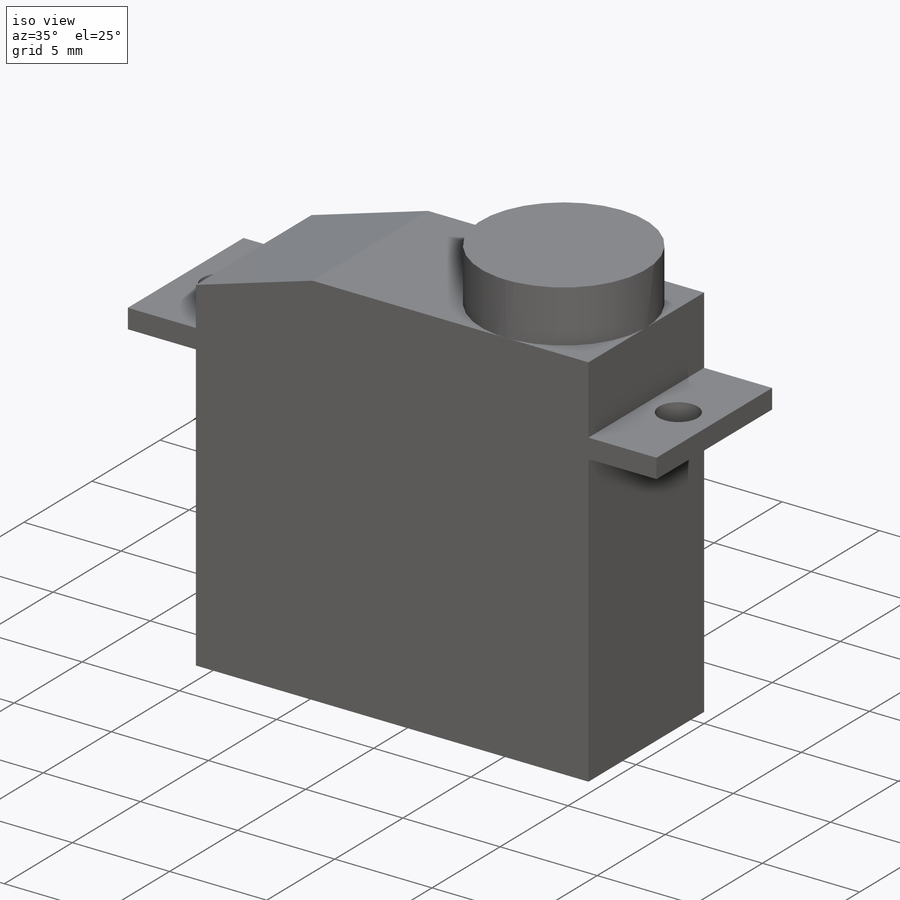
[diagram: iso view]
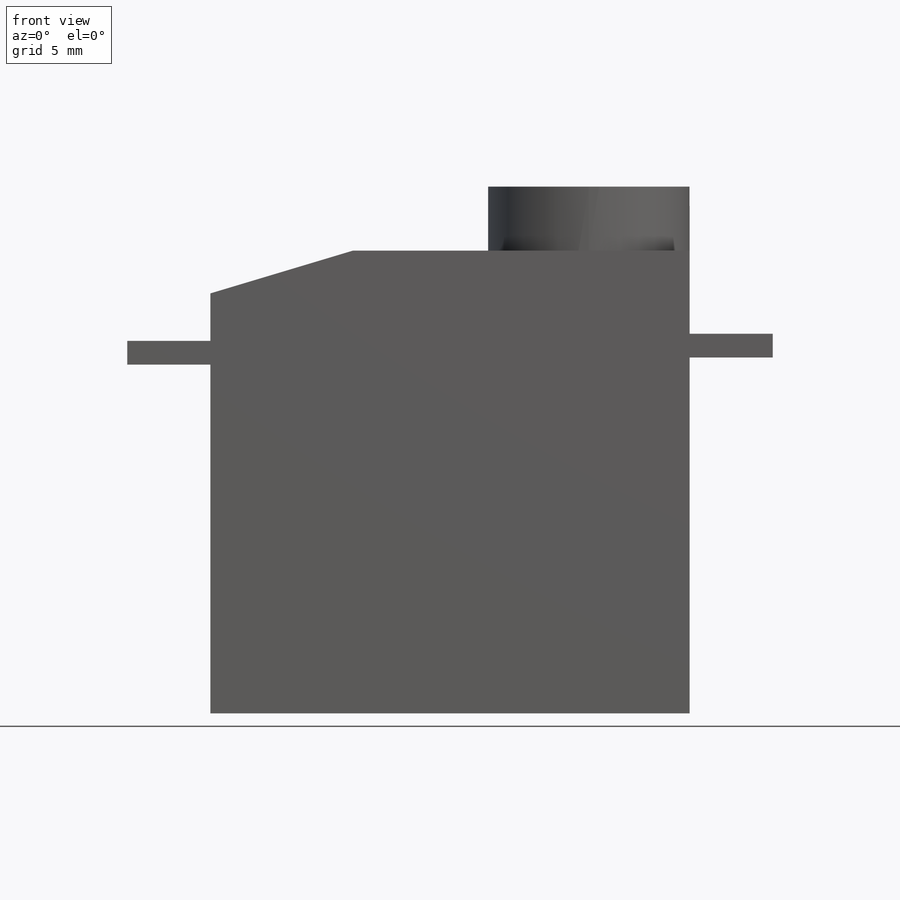
[diagram: front view]
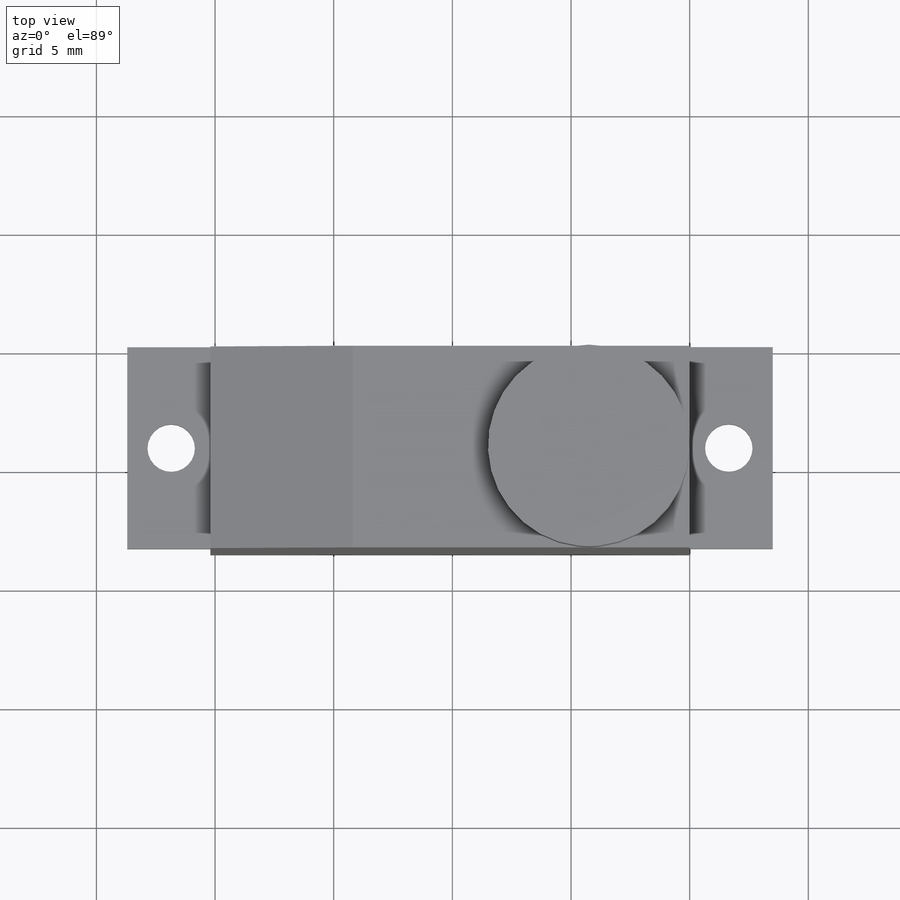
[diagram: top view]
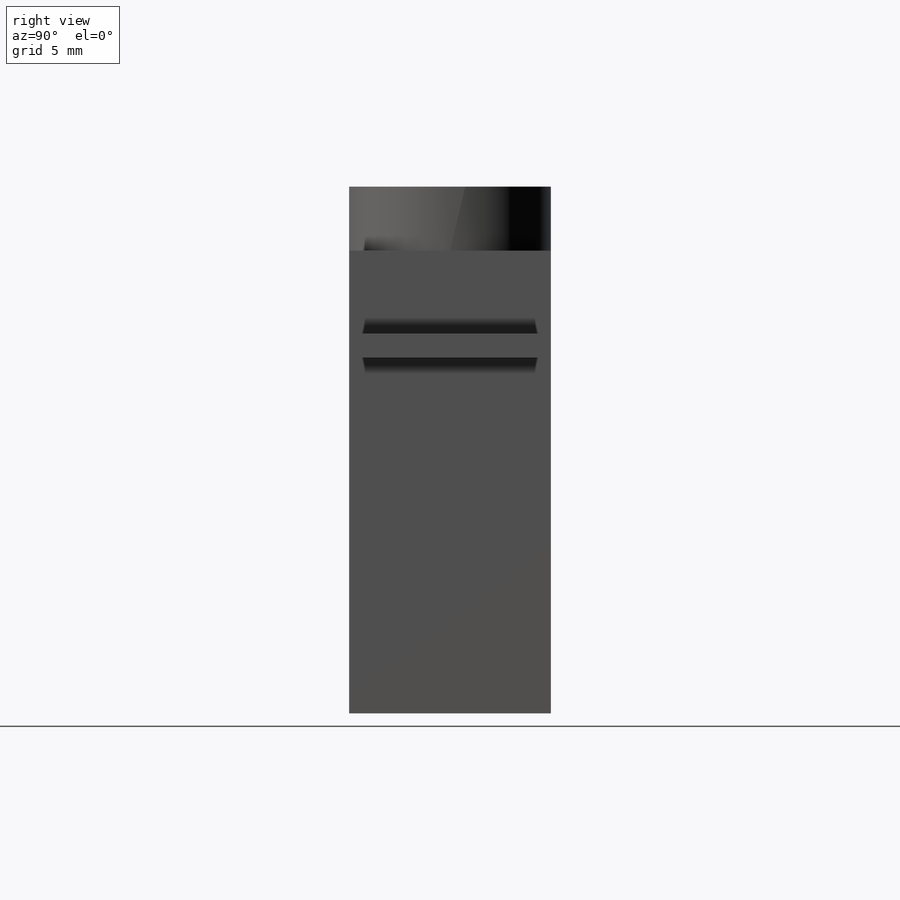
[diagram: right view]
SOLIDWORKS PART (.sldprt)
format: sldprt  version: not decoded by parser v0  size: 177,152 bytes
history: native  units: mm
features: plane x3, sketch x3, extrude x2, material x1, cut_extrude x1 (+9 scaffold rows collapsed)
feature tree (19):
  scaffold x9  (default folders/planes/origin — collapsed)
  material  "Material <not specified>"
  plane  "Plan de face"
  plane  "Plan de dessus"
  plane  "Plan de droite"
  sketch  "Sketch1"  dims[D1=20.2mm D2=19.5mm D3=14.7mm D4=1.0mm D5=2.0mm D6=3.5mm D7=6.0mm D8=1.0mm D9=3.5mm D10=3.5mm D11=3.5mm]
  extrude  "Boss-Extrude1"  Depth=8.5mm
  sketch  "Sketch2"  dims[c1.D1=8.5mm c1.D2=8.5mm c1.D3=8.5mm c2.D2=4.25mm c2.D3=4.25mm]
  extrude  "Boss-Extrude2"  Depth=2.7mm
  sketch  "Sketch3"  dims[c1.D1=2.0mm c1.D2=2.0mm c1.D3=2.0mm c1.D4=2.0mm c1.D5=2.0mm c1.D6=2.0mm c2.D3=23.5mm c2.D4=1.65mm c2.D5=4.25mm c2.D6=4.25mm]
  cut_extrude  "Cut-Extrude1"  [1 undecoded]
decode coverage: 5 of 6 modeling features carry decoded parameters
note: 1 parameter value undecoded
note: suppression state not decoded; provenance and decode notes live in map.json
